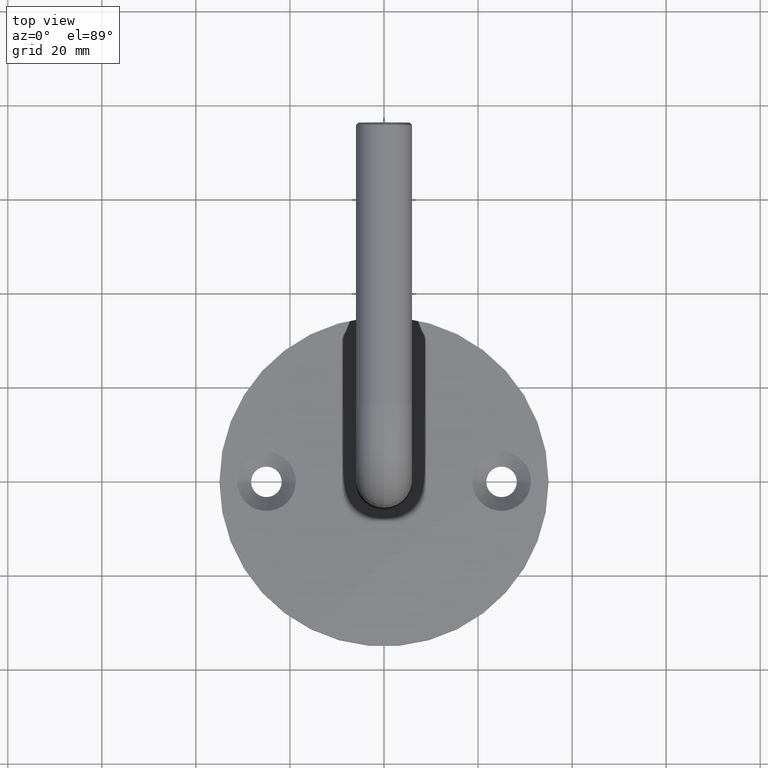
[diagram: clean part render]
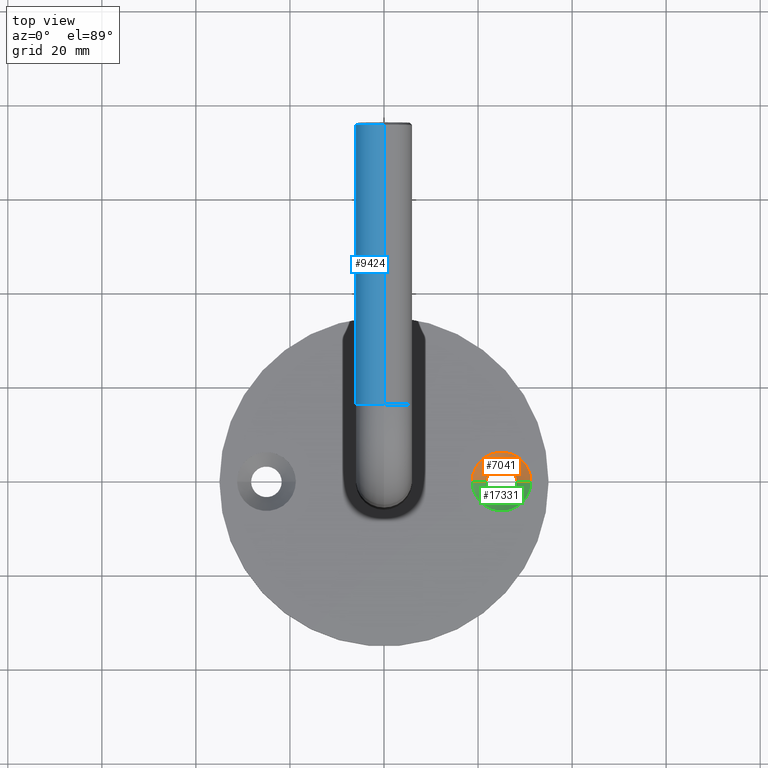
[diagram: same view with three faces highlighted in distinct colors, each labeled with its STEP entity id]
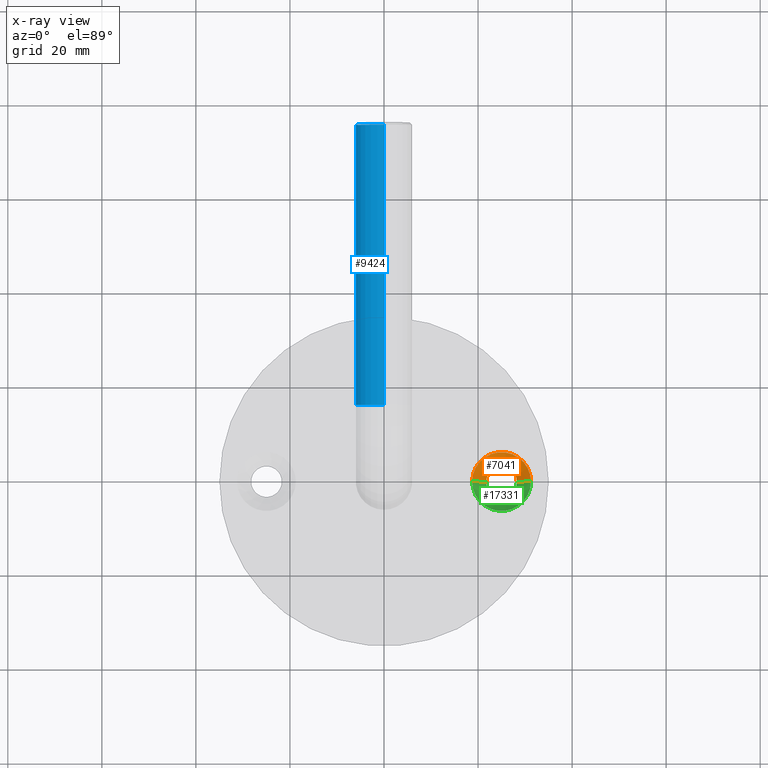
[diagram: x-ray of the same camera — body ghosted, the three highlighted faces saturated]
A machine part, top view with three faces highlighted in distinct colors.
The next image is the same camera in x-ray (body ghosted, the three faces saturated) — at least one of them is partly hidden behind the body in this view.
Their STEP definitions:

[orange] entity #7041 — the highlighted conical surface has half-angle 45 deg.
#390 = VERTEX_POINT ( 'NONE', #6812 ) ;
#841 = VERTEX_POINT ( 'NONE', #4513 ) ;
#1296 = DIRECTION ( 'NONE',  ( 1.000000000000000000, 0.000000000000000000, 0.000000000000000000 ) ) ;
#1310 = CARTESIAN_POINT ( 'NONE',  ( 18.75000000000000355, 6.858022075225180130E-15, 3.499999999999999556 ) ) ;
#1407 = VECTOR ( 'NONE', #11304, 1000.000000000000114 ) ;
#1589 = CIRCLE ( 'NONE', #2460, 3.249999999999999556 ) ;
#1927 = AXIS2_PLACEMENT_3D ( 'NONE', #11382, #4200, #15780 ) ;
#2460 = AXIS2_PLACEMENT_3D ( 'NONE', #12437, #16518, #7771 ) ;
#2660 = DIRECTION ( 'NONE',  ( -0.000000000000000000, -0.000000000000000000, 1.000000000000000000 ) ) ;
#2893 = ORIENTED_EDGE ( 'NONE', *, *, #10022, .T. ) ;
#3167 = LINE ( 'NONE', #15931, #9320 ) ;
#4200 = DIRECTION ( 'NONE',  ( -0.000000000000000000, -0.000000000000000000, 1.000000000000000000 ) ) ;
#4513 = CARTESIAN_POINT ( 'NONE',  ( 28.25000000000000000, 6.490628035480974685E-15, 0.5000000000000004441 ) ) ;
#4919 = EDGE_CURVE ( 'NONE', #16054, #10623, #8038, .T. ) ;
#5295 = CIRCLE ( 'NONE', #6851, 6.249999999999998224 ) ;
#5766 = DIRECTION ( 'NONE',  ( 0.7071067811865474617, 0.000000000000000000, 0.7071067811865474617 ) ) ;
#5981 = CARTESIAN_POINT ( 'NONE',  ( 21.75000000000000355, 6.092617825758084665E-15, 0.5000000000000004441 ) ) ;
#6812 = CARTESIAN_POINT ( 'NONE',  ( 31.25000000000000000, 6.092617825758084665E-15, 3.499999999999999556 ) ) ;
#6851 = AXIS2_PLACEMENT_3D ( 'NONE', #17283, #2660, #1296 ) ;
#7041 = ADVANCED_FACE ( 'NONE', ( #16492 ), #18130, .F. ) ;
#7584 = ORIENTED_EDGE ( 'NONE', *, *, #18897, .F. ) ;
#7771 = DIRECTION ( 'NONE',  ( 1.000000000000000000, 0.000000000000000000, 0.000000000000000000 ) ) ;
#8038 = LINE ( 'NONE', #17065, #1407 ) ;
#9320 = VECTOR ( 'NONE', #5766, 1000.000000000000114 ) ;
#9510 = EDGE_LOOP ( 'NONE', ( #10827, #7584, #2893, #12645 ) ) ;
#10022 = EDGE_CURVE ( 'NONE', #841, #390, #3167, .T. ) ;
#10623 = VERTEX_POINT ( 'NONE', #1310 ) ;
#10827 = ORIENTED_EDGE ( 'NONE', *, *, #4919, .F. ) ;
#11304 = DIRECTION ( 'NONE',  ( -0.7071067811865474617, 8.659560562354932858E-17, 0.7071067811865474617 ) ) ;
#11382 = CARTESIAN_POINT ( 'NONE',  ( 25.00000000000000000, 6.092617825758084665E-15, 3.499999999999999556 ) ) ;
#12437 = CARTESIAN_POINT ( 'NONE',  ( 25.00000000000000000, 6.092617825758084665E-15, 0.5000000000000004441 ) ) ;
#12645 = ORIENTED_EDGE ( 'NONE', *, *, #16207, .T. ) ;
#15780 = DIRECTION ( 'NONE',  ( 1.000000000000000000, 0.000000000000000000, 0.000000000000000000 ) ) ;
#15931 = CARTESIAN_POINT ( 'NONE',  ( 31.25000000000000000, 6.092617825758084665E-15, 3.499999999999999556 ) ) ;
#16054 = VERTEX_POINT ( 'NONE', #5981 ) ;
#16207 = EDGE_CURVE ( 'NONE', #390, #10623, #5295, .T. ) ;
#16492 = FACE_OUTER_BOUND ( 'NONE', #9510, .T. ) ;
#16518 = DIRECTION ( 'NONE',  ( -0.000000000000000000, -0.000000000000000000, 1.000000000000000000 ) ) ;
#17065 = CARTESIAN_POINT ( 'NONE',  ( 18.75000000000000355, 6.858022075225180130E-15, 3.499999999999999556 ) ) ;
#17283 = CARTESIAN_POINT ( 'NONE',  ( 25.00000000000000000, 6.092617825758084665E-15, 3.499999999999999556 ) ) ;
#18130 = CONICAL_SURFACE ( 'NONE', #1927, 6.249999999999998224, 0.7853981633974482790 ) ;
#18897 = EDGE_CURVE ( 'NONE', #841, #16054, #1589, .T. ) ;

[blue] entity #9424 — the highlighted cylindrical surface (edge-blend (fillet) strip) has radius 6 mm, axis along (0, 1, 0).
#1696 = ORIENTED_EDGE ( 'NONE', *, *, #12165, .T. ) ;
#1913 = VERTEX_POINT ( 'NONE', #17957 ) ;
#2153 = VECTOR ( 'NONE', #8560, 1000.000000000000000 ) ;
#3301 = CIRCLE ( 'NONE', #11859, 6.000000000000005329 ) ;
#3393 = CIRCLE ( 'NONE', #7878, 5.999999999999999112 ) ;
#3730 = LINE ( 'NONE', #8436, #2153 ) ;
#4170 = VERTEX_POINT ( 'NONE', #6363 ) ;
#5495 = ORIENTED_EDGE ( 'NONE', *, *, #9697, .T. ) ;
#5799 = DIRECTION ( 'NONE',  ( 0.000000000000000000, -2.891205793294675861E-16, 1.000000000000000000 ) ) ;
#5920 = CYLINDRICAL_SURFACE ( 'NONE', #13841, 6.000000000000005329 ) ;
#6363 = CARTESIAN_POINT ( 'NONE',  ( 7.347880794884108889E-16, 74.50000000000004263, 69.00000000000000000 ) ) ;
#7025 = CARTESIAN_POINT ( 'NONE',  ( 0.000000000000000000, 14.99999999999999112, 81.00000000000000000 ) ) ;
#7530 = CARTESIAN_POINT ( 'NONE',  ( 0.000000000000000000, 74.50000000000004263, 81.00000000000001421 ) ) ;
#7878 = AXIS2_PLACEMENT_3D ( 'NONE', #8216, #18355, #9415 ) ;
#8216 = CARTESIAN_POINT ( 'NONE',  ( 0.000000000000000000, 14.99999999999999289, 75.00000000000000000 ) ) ;
#8436 = CARTESIAN_POINT ( 'NONE',  ( 7.347880794884116778E-16, 14.99999999999999467, 68.99999999999998579 ) ) ;
#8560 = DIRECTION ( 'NONE',  ( 0.000000000000000000, 1.000000000000000000, 2.312964634635743450E-16 ) ) ;
#8591 = VERTEX_POINT ( 'NONE', #9899 ) ;
#9415 = DIRECTION ( 'NONE',  ( 1.000000000000000000, 0.000000000000000000, 0.000000000000000000 ) ) ;
#9424 = ADVANCED_FACE ( 'NONE', ( #18766 ), #5920, .T. ) ;
#9697 = EDGE_CURVE ( 'NONE', #1913, #8591, #3393, .T. ) ;
#9899 = CARTESIAN_POINT ( 'NONE',  ( 0.000000000000000000, 14.99999999999999289, 81.00000000000000000 ) ) ;
#10788 = VECTOR ( 'NONE', #12910, 1000.000000000000000 ) ;
#10795 = CARTESIAN_POINT ( 'NONE',  ( 0.000000000000000000, 74.50000000000004263, 75.00000000000001421 ) ) ;
#11263 = ORIENTED_EDGE ( 'NONE', *, *, #14119, .F. ) ;
#11859 = AXIS2_PLACEMENT_3D ( 'NONE', #10795, #12348, #12416 ) ;
#12165 = EDGE_CURVE ( 'NONE', #13541, #4170, #3301, .T. ) ;
#12348 = DIRECTION ( 'NONE',  ( 0.000000000000000000, -1.000000000000000000, 0.000000000000000000 ) ) ;
#12410 = LINE ( 'NONE', #7025, #10788 ) ;
#12416 = DIRECTION ( 'NONE',  ( 0.000000000000000000, 0.000000000000000000, 1.000000000000000000 ) ) ;
#12910 = DIRECTION ( 'NONE',  ( 0.000000000000000000, 1.000000000000000000, 2.312964634635743450E-16 ) ) ;
#13541 = VERTEX_POINT ( 'NONE', #7530 ) ;
#13841 = AXIS2_PLACEMENT_3D ( 'NONE', #18825, #15956, #5799 ) ;
#14119 = EDGE_CURVE ( 'NONE', #1913, #4170, #3730, .T. ) ;
#14274 = ORIENTED_EDGE ( 'NONE', *, *, #15489, .T. ) ;
#15489 = EDGE_CURVE ( 'NONE', #8591, #13541, #12410, .T. ) ;
#15956 = DIRECTION ( 'NONE',  ( 0.000000000000000000, 1.000000000000000000, 2.312964634635743450E-16 ) ) ;
#17957 = CARTESIAN_POINT ( 'NONE',  ( 7.347880794884125653E-16, 14.99999999999999289, 68.99999999999998579 ) ) ;
#18355 = DIRECTION ( 'NONE',  ( 0.000000000000000000, 1.000000000000000000, 6.123233995736766036E-17 ) ) ;
#18572 = EDGE_LOOP ( 'NONE', ( #11263, #5495, #14274, #1696 ) ) ;
#18766 = FACE_OUTER_BOUND ( 'NONE', #18572, .T. ) ;
#18825 = CARTESIAN_POINT ( 'NONE',  ( 0.000000000000000000, 14.99999999999999289, 75.00000000000000000 ) ) ;

[green] entity #17331 — the highlighted conical surface has half-angle 45 deg.
#390 = VERTEX_POINT ( 'NONE', #6812 ) ;
#841 = VERTEX_POINT ( 'NONE', #4513 ) ;
#1156 = DIRECTION ( 'NONE',  ( 1.000000000000000000, 0.000000000000000000, 0.000000000000000000 ) ) ;
#1310 = CARTESIAN_POINT ( 'NONE',  ( 18.75000000000000355, 6.858022075225180130E-15, 3.499999999999999556 ) ) ;
#1407 = VECTOR ( 'NONE', #11304, 1000.000000000000114 ) ;
#3167 = LINE ( 'NONE', #15931, #9320 ) ;
#3693 = CIRCLE ( 'NONE', #11339, 6.249999999999998224 ) ;
#3734 = ORIENTED_EDGE ( 'NONE', *, *, #10022, .F. ) ;
#3735 = AXIS2_PLACEMENT_3D ( 'NONE', #11571, #15651, #1156 ) ;
#3943 = EDGE_CURVE ( 'NONE', #10623, #390, #3693, .T. ) ;
#4106 = CONICAL_SURFACE ( 'NONE', #3735, 6.249999999999998224, 0.7853981633974482790 ) ;
#4513 = CARTESIAN_POINT ( 'NONE',  ( 28.25000000000000000, 6.490628035480974685E-15, 0.5000000000000004441 ) ) ;
#4919 = EDGE_CURVE ( 'NONE', #16054, #10623, #8038, .T. ) ;
#5261 = ORIENTED_EDGE ( 'NONE', *, *, #3943, .T. ) ;
#5334 = CIRCLE ( 'NONE', #10010, 3.249999999999999556 ) ;
#5519 = ORIENTED_EDGE ( 'NONE', *, *, #4919, .T. ) ;
#5766 = DIRECTION ( 'NONE',  ( 0.7071067811865474617, 0.000000000000000000, 0.7071067811865474617 ) ) ;
#5981 = CARTESIAN_POINT ( 'NONE',  ( 21.75000000000000355, 6.092617825758084665E-15, 0.5000000000000004441 ) ) ;
#6135 = DIRECTION ( 'NONE',  ( -0.000000000000000000, -0.000000000000000000, 1.000000000000000000 ) ) ;
#6812 = CARTESIAN_POINT ( 'NONE',  ( 31.25000000000000000, 6.092617825758084665E-15, 3.499999999999999556 ) ) ;
#7563 = FACE_OUTER_BOUND ( 'NONE', #17983, .T. ) ;
#7685 = DIRECTION ( 'NONE',  ( 1.000000000000000000, 0.000000000000000000, 0.000000000000000000 ) ) ;
#8038 = LINE ( 'NONE', #17065, #1407 ) ;
#8148 = ORIENTED_EDGE ( 'NONE', *, *, #13159, .F. ) ;
#8753 = DIRECTION ( 'NONE',  ( 1.000000000000000000, 0.000000000000000000, 0.000000000000000000 ) ) ;
#9320 = VECTOR ( 'NONE', #5766, 1000.000000000000114 ) ;
#10010 = AXIS2_PLACEMENT_3D ( 'NONE', #16364, #6135, #7685 ) ;
#10022 = EDGE_CURVE ( 'NONE', #841, #390, #3167, .T. ) ;
#10623 = VERTEX_POINT ( 'NONE', #1310 ) ;
#11304 = DIRECTION ( 'NONE',  ( -0.7071067811865474617, 8.659560562354932858E-17, 0.7071067811865474617 ) ) ;
#11339 = AXIS2_PLACEMENT_3D ( 'NONE', #18981, #17541, #8753 ) ;
#11571 = CARTESIAN_POINT ( 'NONE',  ( 25.00000000000000000, 6.092617825758084665E-15, 3.499999999999999556 ) ) ;
#13159 = EDGE_CURVE ( 'NONE', #16054, #841, #5334, .T. ) ;
#15651 = DIRECTION ( 'NONE',  ( -0.000000000000000000, -0.000000000000000000, 1.000000000000000000 ) ) ;
#15931 = CARTESIAN_POINT ( 'NONE',  ( 31.25000000000000000, 6.092617825758084665E-15, 3.499999999999999556 ) ) ;
#16054 = VERTEX_POINT ( 'NONE', #5981 ) ;
#16364 = CARTESIAN_POINT ( 'NONE',  ( 25.00000000000000000, 6.092617825758084665E-15, 0.5000000000000004441 ) ) ;
#17065 = CARTESIAN_POINT ( 'NONE',  ( 18.75000000000000355, 6.858022075225180130E-15, 3.499999999999999556 ) ) ;
#17331 = ADVANCED_FACE ( 'NONE', ( #7563 ), #4106, .F. ) ;
#17541 = DIRECTION ( 'NONE',  ( -0.000000000000000000, -0.000000000000000000, 1.000000000000000000 ) ) ;
#17983 = EDGE_LOOP ( 'NONE', ( #8148, #5519, #5261, #3734 ) ) ;
#18981 = CARTESIAN_POINT ( 'NONE',  ( 25.00000000000000000, 6.092617825758084665E-15, 3.499999999999999556 ) ) ;